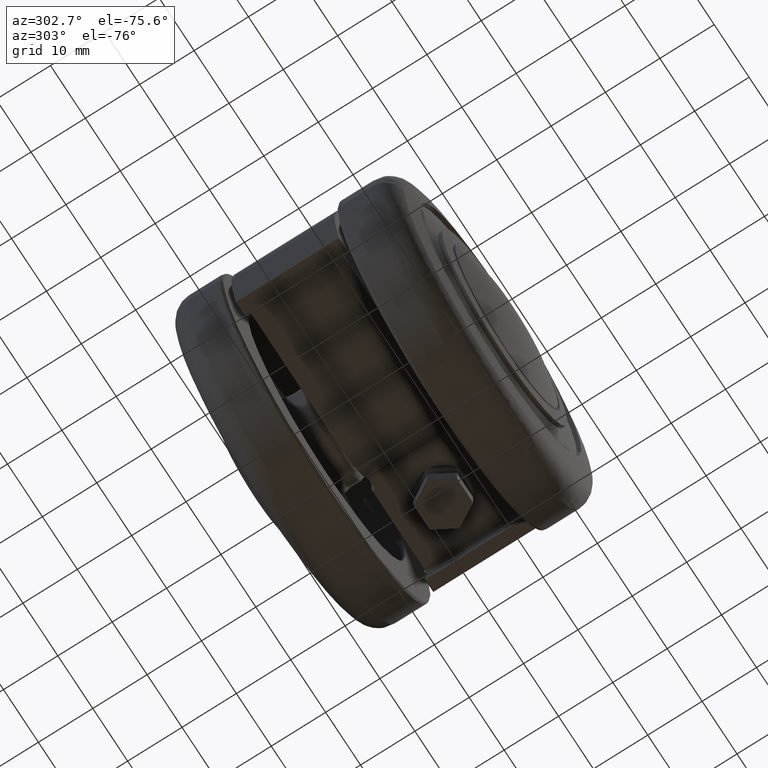
[diagram: clean part render]
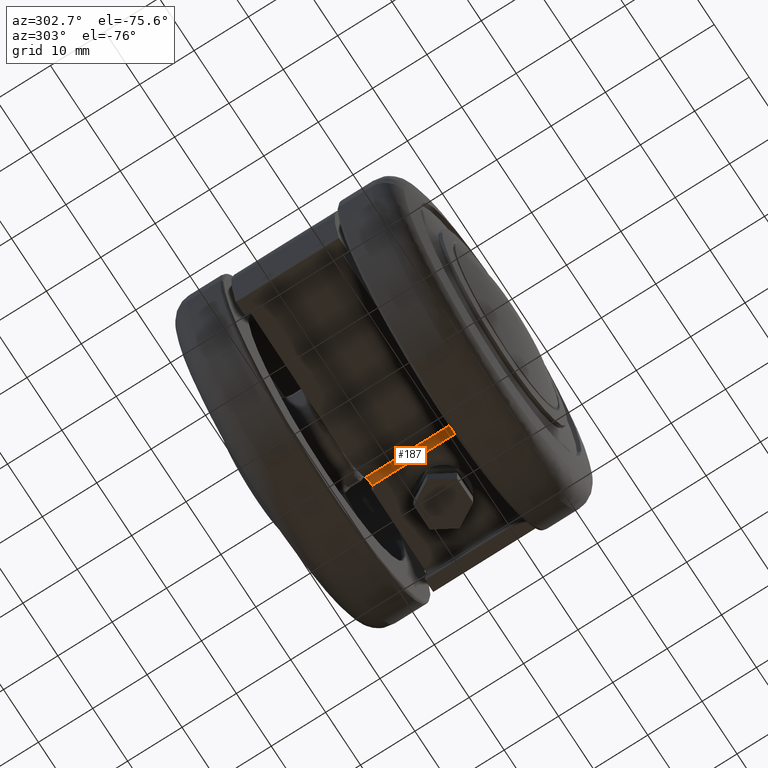
[diagram: same view with one face highlighted and labeled with its STEP entity id]
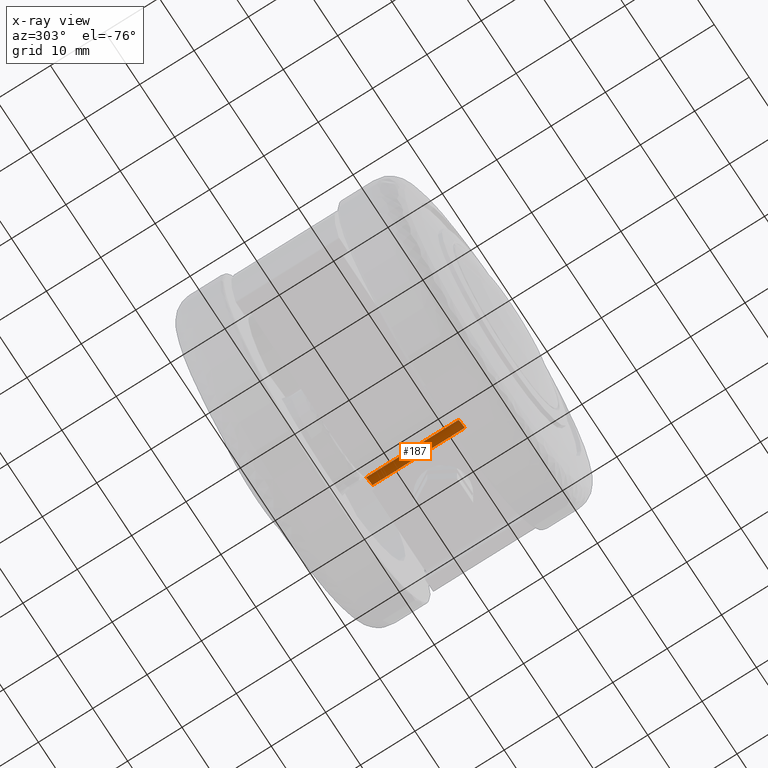
[diagram: x-ray of the same camera — body ghosted, the highlighted face saturated]
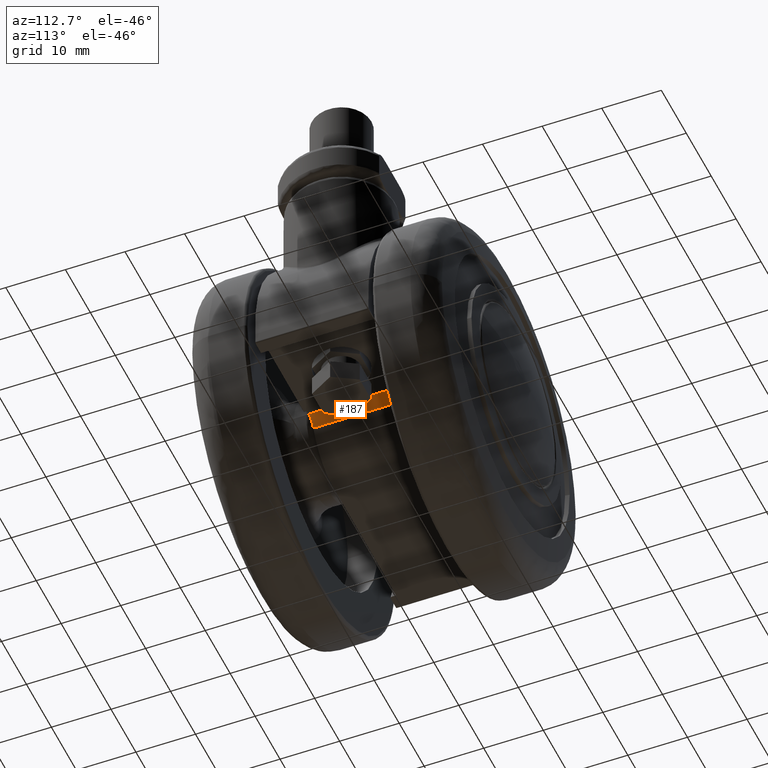
[diagram: same view with one face highlighted and labeled with its STEP entity id]
A machine part, auxiliary view. The second image highlights one B-rep face of the part: STEP entity #187.
The next image is the same camera in x-ray: the body ghosted, the highlighted face saturated — about 11% of this face is hidden behind the body in this view.
A second angle (auxiliary view) of the same face is appended — the face is thin or edge-on in the first view.
In plain terms, the highlighted cylindrical surface (edge-blend (fillet) strip) has radius 2 mm, axis along (0, -1, 0).
Its self-contained STEP definition (entity closure, byte-faithful):
#187=ADVANCED_FACE('',(#604),#603,.F.);
#603=CYLINDRICAL_SURFACE('',#2123,2.00000000000E+00);
#604=FACE_OUTER_BOUND('',#2124,.T.);
#2120=CARTESIAN_POINT('',(9.89949493661E+00,-0.00000000000E+00,-3.50000000000E+00));
#2121=DIRECTION('',(-0.00000000000E+00,-1.00000000000E+00,0.00000000000E+00));
#2122=DIRECTION('',(1.00000000000E+00,-0.00000000000E+00,-0.00000000000E+00));
#2123=AXIS2_PLACEMENT_3D('',#2120,#2121,#2122);
#2124=EDGE_LOOP('',(#4676,#4677,#4678,#4679));
#4676=ORIENTED_EDGE('',*,*,#5285,.F.);
#4677=ORIENTED_EDGE('',*,*,#5302,.F.);
#4678=ORIENTED_EDGE('',*,*,#5277,.F.);
#4679=ORIENTED_EDGE('',*,*,#5294,.F.);
#5277=EDGE_CURVE('',#5964,#5971,#5972,.T.);
#5285=EDGE_CURVE('',#6019,#6026,#6027,.T.);
#5294=EDGE_CURVE('',#6026,#5964,#6088,.T.);
#5302=EDGE_CURVE('',#5971,#6019,#6142,.T.);
#5964=VERTEX_POINT('',#8418);
#5971=VERTEX_POINT('',#8422);
#5972=CIRCLE('',#8426,2.00000000000E+00);
#6019=VERTEX_POINT('',#8454);
#6026=VERTEX_POINT('',#8459);
#6027=CIRCLE('',#8463,2.00000000000E+00);
#6088=LINE('',#8501,#8502);
#6142=LINE('',#8533,#8534);
#8418=CARTESIAN_POINT('',(9.89949493661E+00,8.50000000000E+00,-1.50000000000E+00));
#8422=CARTESIAN_POINT('',(8.01387685345E+00,8.50000000000E+00,-2.83333333333E+00));
#8423=CARTESIAN_POINT('',(9.89949493661E+00,8.50000000000E+00,-3.50000000000E+00));
#8424=DIRECTION('',(0.00000000000E+00,-1.00000000000E+00,0.00000000000E+00));
#8425=DIRECTION('',(-0.00000000000E+00,-0.00000000000E+00,-1.00000000000E+00));
#8426=AXIS2_PLACEMENT_3D('',#8423,#8424,#8425);
#8454=CARTESIAN_POINT('',(8.01387685345E+00,-8.50000000000E+00,-2.83333333333E+00));
#8459=CARTESIAN_POINT('',(9.89949493661E+00,-8.50000000000E+00,-1.50000000000E+00));
#8460=CARTESIAN_POINT('',(9.89949493661E+00,-8.50000000000E+00,-3.50000000000E+00));
#8461=DIRECTION('',(0.00000000000E+00,1.00000000000E+00,0.00000000000E+00));
#8462=DIRECTION('',(9.42809041582E-01,-0.00000000000E+00,-3.33333333333E-01));
#8463=AXIS2_PLACEMENT_3D('',#8460,#8461,#8462);
#8501=CARTESIAN_POINT('',(9.89949493661E+00,-8.50000000000E+00,-1.50000000000E+00));
#8502=VECTOR('',#8503,1.70000000000E+01);
#8503=DIRECTION('',(0.00000000000E+00,1.00000000000E+00,0.00000000000E+00));
#8533=CARTESIAN_POINT('',(8.01387685345E+00,8.50000000000E+00,-2.83333333333E+00));
#8534=VECTOR('',#8535,1.70000000000E+01);
#8535=DIRECTION('',(0.00000000000E+00,-1.00000000000E+00,0.00000000000E+00));